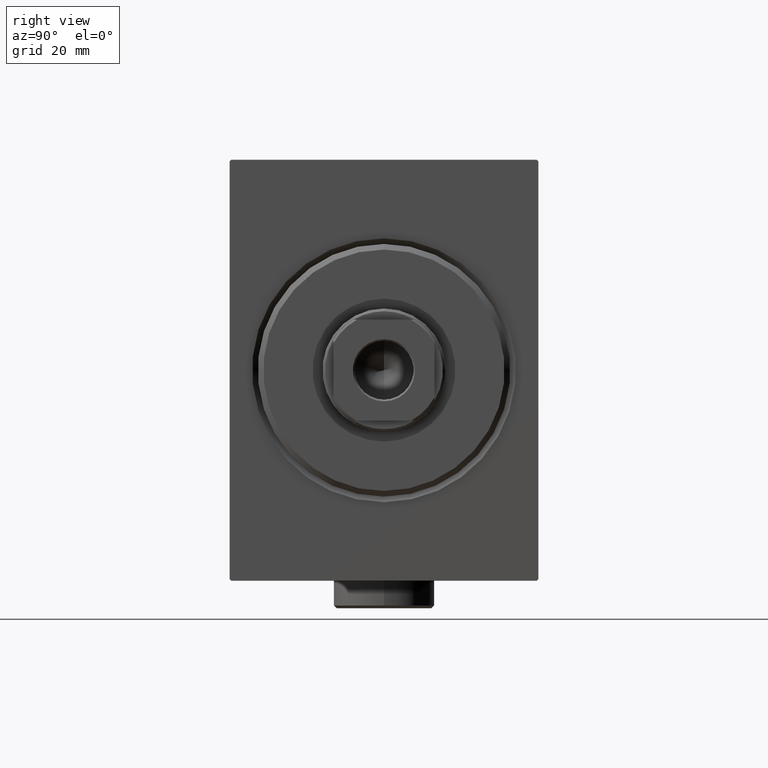
[diagram: clean part render]
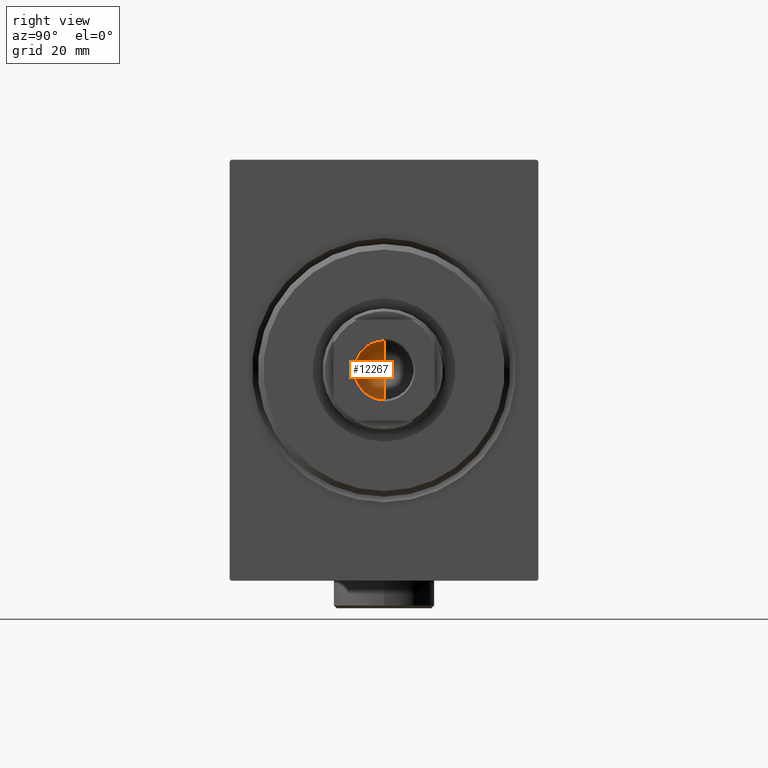
[diagram: same view with one face highlighted and labeled with its STEP entity id]
A machine part, right view. The second image highlights one B-rep face of the part: STEP entity #12267.
In plain terms, the highlighted conical surface has half-angle 59 deg.
Its self-contained STEP definition (entity closure, byte-faithful):
#2086 = DIRECTION ( 'NONE',  ( 0.8571673007021115565, 0.000000000000000000, 0.5150380749100554878 ) ) ;
#4396 = AXIS2_PLACEMENT_3D ( 'NONE', #29076, #22620, #32169 ) ;
#7198 = EDGE_CURVE ( 'NONE', #14092, #32825, #39200, .T. ) ;
#8771 = DIRECTION ( 'NONE',  ( -0.8571673007021115565, 1.049727191138617710E-16, 0.5150380749100554878 ) ) ;
#9078 = CARTESIAN_POINT ( 'NONE',  ( -4.624611670276745537E-15, 0.000000000000000000, 56.84548175010531423 ) ) ;
#12267 = ADVANCED_FACE ( 'NONE', ( #43037 ), #28592, .F. ) ;
#12357 = ORIENTED_EDGE ( 'NONE', *, *, #7198, .T. ) ;
#12531 = LINE ( 'NONE', #22995, #30516 ) ;
#13963 = DIRECTION ( 'NONE',  ( -0.000000000000000000, -0.000000000000000000, 1.000000000000000000 ) ) ;
#14092 = VERTEX_POINT ( 'NONE', #33114 ) ;
#16882 = CARTESIAN_POINT ( 'NONE',  ( 0.000000000000000000, 0.000000000000000000, 60.00000000000001421 ) ) ;
#18356 = CARTESIAN_POINT ( 'NONE',  ( -5.249999999999995559, 6.429395695523600208E-16, 60.00000000000001421 ) ) ;
#18544 = VERTEX_POINT ( 'NONE', #9078 ) ;
#22620 = DIRECTION ( 'NONE',  ( -0.000000000000000000, -0.000000000000000000, 1.000000000000000000 ) ) ;
#22995 = CARTESIAN_POINT ( 'NONE',  ( 5.249999999999995559, 0.000000000000000000, 60.00000000000001421 ) ) ;
#23615 = AXIS2_PLACEMENT_3D ( 'NONE', #16882, #13963, #30658 ) ;
#28592 = CONICAL_SURFACE ( 'NONE', #4396, 5.249999999999995559, 1.029744258676652979 ) ;
#29037 = LINE ( 'NONE', #18356, #38977 ) ;
#29076 = CARTESIAN_POINT ( 'NONE',  ( 0.000000000000000000, 0.000000000000000000, 60.00000000000001421 ) ) ;
#30516 = VECTOR ( 'NONE', #2086, 1000.000000000000000 ) ;
#30553 = CARTESIAN_POINT ( 'NONE',  ( 5.249999999999995559, 0.000000000000000000, 60.00000000000001421 ) ) ;
#30658 = DIRECTION ( 'NONE',  ( 1.000000000000000000, 0.000000000000000000, 0.000000000000000000 ) ) ;
#30815 = EDGE_LOOP ( 'NONE', ( #41454, #34143, #12357 ) ) ;
#32169 = DIRECTION ( 'NONE',  ( 1.000000000000000000, 0.000000000000000000, 0.000000000000000000 ) ) ;
#32825 = VERTEX_POINT ( 'NONE', #30553 ) ;
#33114 = CARTESIAN_POINT ( 'NONE',  ( -5.249999999999995559, 6.429395695523600208E-16, 60.00000000000001421 ) ) ;
#34143 = ORIENTED_EDGE ( 'NONE', *, *, #36541, .T. ) ;
#36541 = EDGE_CURVE ( 'NONE', #18544, #14092, #29037, .T. ) ;
#38977 = VECTOR ( 'NONE', #8771, 1000.000000000000000 ) ;
#39200 = CIRCLE ( 'NONE', #23615, 5.249999999999995559 ) ;
#39815 = EDGE_CURVE ( 'NONE', #18544, #32825, #12531, .T. ) ;
#41454 = ORIENTED_EDGE ( 'NONE', *, *, #39815, .F. ) ;
#43037 = FACE_OUTER_BOUND ( 'NONE', #30815, .T. ) ;